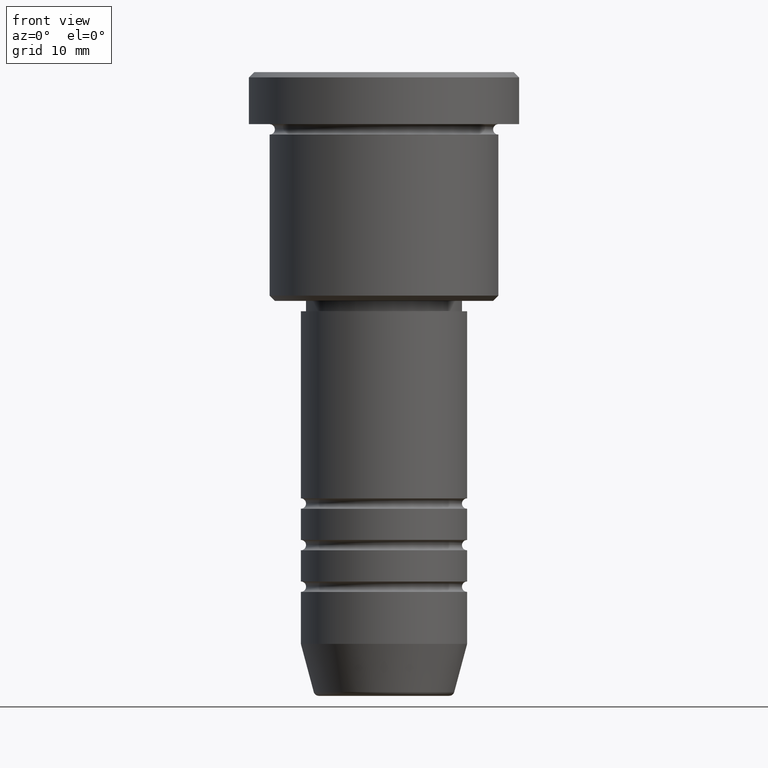
[diagram: clean part render]
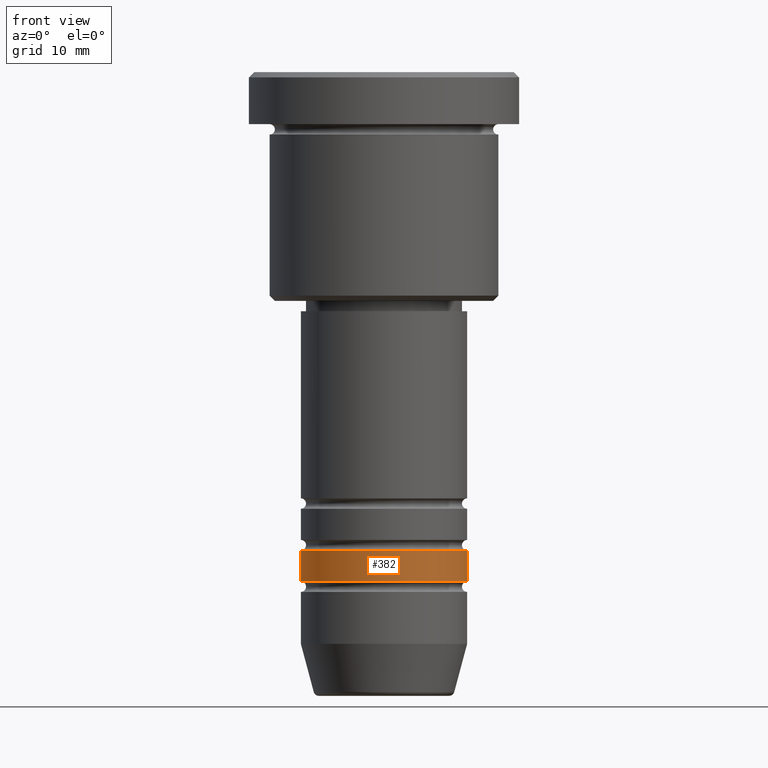
[diagram: same view with one face highlighted and labeled with its STEP entity id]
A machine part, front view. The second image highlights one B-rep face of the part: STEP entity #382.
In plain terms, the highlighted cylindrical surface (partial cylindrical patch) has radius 8 mm, axis along (-0, -0, 1).
Its self-contained STEP definition (entity closure, byte-faithful):
#32 = CIRCLE ( 'NONE', #712, 8.000000000000000000 ) ;
#41 = CARTESIAN_POINT ( 'NONE',  ( 0.000000000000000000, 0.000000000000000000, -45.99999999999999289 ) ) ;
#54 = DIRECTION ( 'NONE',  ( -0.000000000000000000, -0.000000000000000000, 1.000000000000000000 ) ) ;
#87 = FACE_OUTER_BOUND ( 'NONE', #754, .T. ) ;
#102 = AXIS2_PLACEMENT_3D ( 'NONE', #591, #54, #162 ) ;
#111 = ORIENTED_EDGE ( 'NONE', *, *, #837, .F. ) ;
#121 = AXIS2_PLACEMENT_3D ( 'NONE', #435, #615, #810 ) ;
#162 = DIRECTION ( 'NONE',  ( 1.000000000000000000, 0.000000000000000000, 0.000000000000000000 ) ) ;
#164 = CYLINDRICAL_SURFACE ( 'NONE', #121, 8.000000000000000000 ) ;
#207 = DIRECTION ( 'NONE',  ( 1.000000000000000000, 0.000000000000000000, 0.000000000000000000 ) ) ;
#223 = DIRECTION ( 'NONE',  ( -0.000000000000000000, -0.000000000000000000, 1.000000000000000000 ) ) ;
#274 = VERTEX_POINT ( 'NONE', #795 ) ;
#326 = CARTESIAN_POINT ( 'NONE',  ( -8.000000000000000000, 9.797174393178825657E-16, -45.99999999999999289 ) ) ;
#375 = VECTOR ( 'NONE', #223, 1000.000000000000000 ) ;
#382 = ADVANCED_FACE ( 'NONE', ( #87 ), #164, .T. ) ;
#412 = DIRECTION ( 'NONE',  ( -0.000000000000000000, -0.000000000000000000, 1.000000000000000000 ) ) ;
#435 = CARTESIAN_POINT ( 'NONE',  ( 0.000000000000000000, 0.000000000000000000, 0.000000000000000000 ) ) ;
#463 = DIRECTION ( 'NONE',  ( -0.000000000000000000, -0.000000000000000000, 1.000000000000000000 ) ) ;
#483 = VERTEX_POINT ( 'NONE', #486 ) ;
#486 = CARTESIAN_POINT ( 'NONE',  ( 8.000000000000000000, 0.000000000000000000, -45.99999999999999289 ) ) ;
#492 = VECTOR ( 'NONE', #412, 1000.000000000000000 ) ;
#536 = VERTEX_POINT ( 'NONE', #326 ) ;
#558 = EDGE_CURVE ( 'NONE', #274, #1050, #603, .T. ) ;
#591 = CARTESIAN_POINT ( 'NONE',  ( 0.000000000000000000, 0.000000000000000000, -48.99999999999998579 ) ) ;
#598 = EDGE_CURVE ( 'NONE', #274, #536, #957, .T. ) ;
#603 = CIRCLE ( 'NONE', #102, 8.000000000000000000 ) ;
#615 = DIRECTION ( 'NONE',  ( -0.000000000000000000, -0.000000000000000000, 1.000000000000000000 ) ) ;
#712 = AXIS2_PLACEMENT_3D ( 'NONE', #41, #463, #207 ) ;
#717 = LINE ( 'NONE', #1084, #375 ) ;
#754 = EDGE_LOOP ( 'NONE', ( #1090, #1123, #990, #111 ) ) ;
#795 = CARTESIAN_POINT ( 'NONE',  ( -8.000000000000000000, 9.797174393178825657E-16, -48.99999999999998579 ) ) ;
#799 = EDGE_CURVE ( 'NONE', #1050, #483, #717, .T. ) ;
#810 = DIRECTION ( 'NONE',  ( 1.000000000000000000, 0.000000000000000000, 0.000000000000000000 ) ) ;
#837 = EDGE_CURVE ( 'NONE', #536, #483, #32, .T. ) ;
#851 = CARTESIAN_POINT ( 'NONE',  ( 8.000000000000000000, 0.000000000000000000, -48.99999999999998579 ) ) ;
#957 = LINE ( 'NONE', #972, #492 ) ;
#972 = CARTESIAN_POINT ( 'NONE',  ( -8.000000000000000000, 9.797174393178825657E-16, 0.000000000000000000 ) ) ;
#990 = ORIENTED_EDGE ( 'NONE', *, *, #799, .T. ) ;
#1050 = VERTEX_POINT ( 'NONE', #851 ) ;
#1084 = CARTESIAN_POINT ( 'NONE',  ( 8.000000000000000000, 0.000000000000000000, 0.000000000000000000 ) ) ;
#1090 = ORIENTED_EDGE ( 'NONE', *, *, #598, .F. ) ;
#1123 = ORIENTED_EDGE ( 'NONE', *, *, #558, .T. ) ;